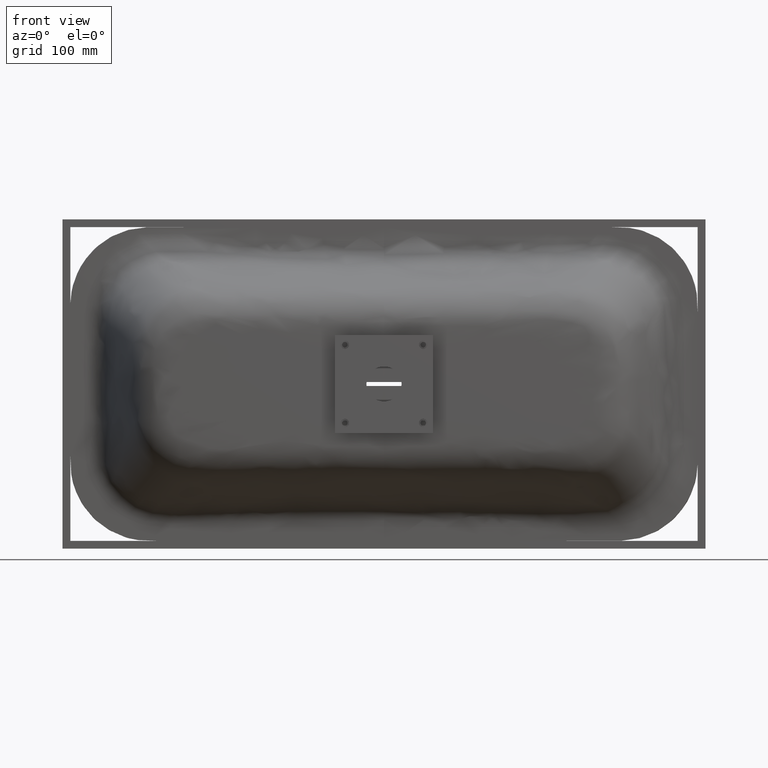
[diagram: clean part render]
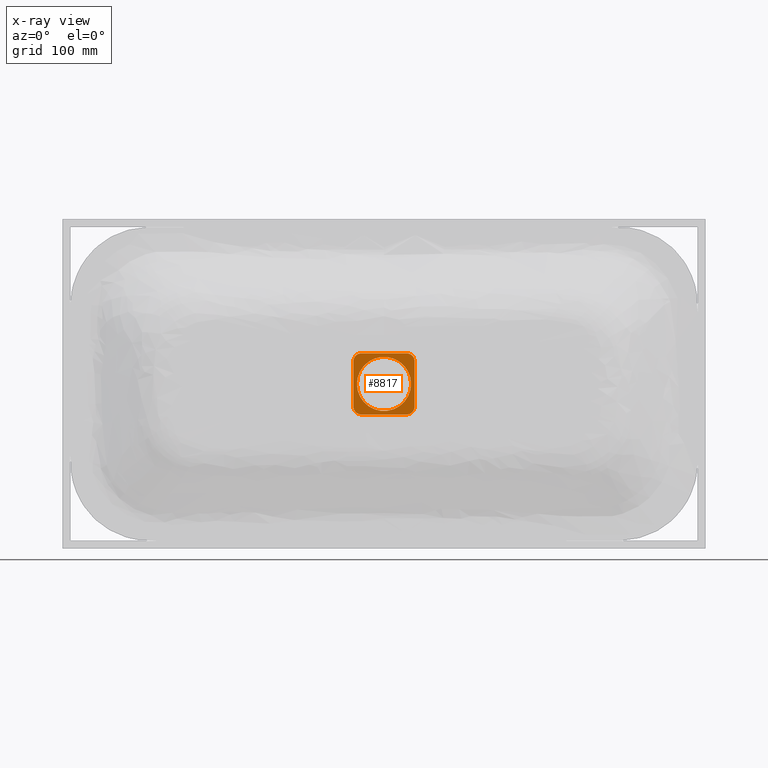
[diagram: x-ray — body ghosted, one internal face saturated and labeled with its STEP entity id]
A machine part, front view, then the same camera in x-ray: the body is ghosted and one INTERNAL B-rep face — a face not visible from any outside direction — is saturated and labeled: STEP entity #8817.
In plain terms, the highlighted planar face has unit normal (0, 1, 0).
Its self-contained STEP definition (entity closure, byte-faithful):
#172 = VERTEX_POINT ( 'NONE', #371 ) ;
#273 = EDGE_LOOP ( 'NONE', ( #3180, #1558, #1637, #3126, #3613, #4059, #3337, #4760 ) ) ;
#362 = CARTESIAN_POINT ( 'NONE',  ( 39.00000000000010700, -4.999999999999997300, 28.99999999999989300 ) ) ;
#371 = CARTESIAN_POINT ( 'NONE',  ( 34.49999999999999300, -4.999999999999999100, -1.135557536678629300E-013 ) ) ;
#507 = EDGE_LOOP ( 'NONE', ( #9098, #836 ) ) ;
#711 = CIRCLE ( 'NONE', #3258, 9.999999999999998200 ) ;
#836 = ORIENTED_EDGE ( 'NONE', *, *, #8757, .T. ) ;
#873 = VECTOR ( 'NONE', #8329, 1000.000000000000000 ) ;
#1093 = VERTEX_POINT ( 'NONE', #7309 ) ;
#1238 = DIRECTION ( 'NONE',  ( -1.000000000000000000, 0.0000000000000000000, 3.413935800722356400E-015 ) ) ;
#1401 = FACE_BOUND ( 'NONE', #507, .T. ) ;
#1558 = ORIENTED_EDGE ( 'NONE', *, *, #4529, .T. ) ;
#1637 = ORIENTED_EDGE ( 'NONE', *, *, #4558, .T. ) ;
#1737 = AXIS2_PLACEMENT_3D ( 'NONE', #6069, #5672, #5375 ) ;
#1901 = DIRECTION ( 'NONE',  ( -0.0000000000000000000, -1.000000000000000000, -0.0000000000000000000 ) ) ;
#1930 = CARTESIAN_POINT ( 'NONE',  ( 0.0000000000000000000, -4.999999999999997300, -0.0000000000000000000 ) ) ;
#1977 = LINE ( 'NONE', #9398, #4228 ) ;
#2020 = VERTEX_POINT ( 'NONE', #7620 ) ;
#2105 = VERTEX_POINT ( 'NONE', #362 ) ;
#2274 = DIRECTION ( 'NONE',  ( -1.000000000000000000, 0.0000000000000000000, 3.469446951953615000E-015 ) ) ;
#2302 = DIRECTION ( 'NONE',  ( 0.0000000000000000000, 1.000000000000000000, 0.0000000000000000000 ) ) ;
#2318 = CARTESIAN_POINT ( 'NONE',  ( 29.00000000000010700, -4.999999999999997300, 28.99999999999992500 ) ) ;
#2399 = VERTEX_POINT ( 'NONE', #3646 ) ;
#2475 = VERTEX_POINT ( 'NONE', #7629 ) ;
#2775 = EDGE_CURVE ( 'NONE', #3252, #1093, #7387, .T. ) ;
#3036 = DIRECTION ( 'NONE',  ( -1.000000000000000000, 0.0000000000000000000, 3.502895978977577200E-015 ) ) ;
#3057 = CARTESIAN_POINT ( 'NONE',  ( 38.99999999999987200, -4.999999999999997300, -39.00000000000016300 ) ) ;
#3126 = ORIENTED_EDGE ( 'NONE', *, *, #4548, .T. ) ;
#3159 = AXIS2_PLACEMENT_3D ( 'NONE', #2318, #2302, #2274 ) ;
#3180 = ORIENTED_EDGE ( 'NONE', *, *, #7411, .T. ) ;
#3213 = VERTEX_POINT ( 'NONE', #8121 ) ;
#3252 = VERTEX_POINT ( 'NONE', #8053 ) ;
#3258 = AXIS2_PLACEMENT_3D ( 'NONE', #9782, #9144, #9112 ) ;
#3337 = ORIENTED_EDGE ( 'NONE', *, *, #8374, .T. ) ;
#3517 = LINE ( 'NONE', #3057, #5643 ) ;
#3613 = ORIENTED_EDGE ( 'NONE', *, *, #9808, .T. ) ;
#3646 = CARTESIAN_POINT ( 'NONE',  ( -28.99999999999986500, -4.999999999999997300, 39.00000000000010700 ) ) ;
#4032 = VECTOR ( 'NONE', #8311, 1000.000000000000000 ) ;
#4059 = ORIENTED_EDGE ( 'NONE', *, *, #8208, .T. ) ;
#4166 = LINE ( 'NONE', #8285, #4032 ) ;
#4228 = VECTOR ( 'NONE', #9364, 1000.000000000000000 ) ;
#4403 = CIRCLE ( 'NONE', #9314, 34.50000000000000000 ) ;
#4529 = EDGE_CURVE ( 'NONE', #2020, #6277, #711, .T. ) ;
#4548 = EDGE_CURVE ( 'NONE', #2475, #2399, #6474, .T. ) ;
#4558 = EDGE_CURVE ( 'NONE', #6277, #2475, #1977, .T. ) ;
#4736 = VERTEX_POINT ( 'NONE', #9779 ) ;
#4760 = ORIENTED_EDGE ( 'NONE', *, *, #2775, .T. ) ;
#4993 = FACE_OUTER_BOUND ( 'NONE', #273, .T. ) ;
#5116 = CIRCLE ( 'NONE', #9489, 34.50000000000000000 ) ;
#5241 = CIRCLE ( 'NONE', #3159, 9.999999999999998200 ) ;
#5375 = DIRECTION ( 'NONE',  ( -1.000000000000000000, 0.0000000000000000000, 3.469446951953615000E-015 ) ) ;
#5643 = VECTOR ( 'NONE', #3036, 1000.000000000000000 ) ;
#5672 = DIRECTION ( 'NONE',  ( 0.0000000000000000000, 1.000000000000000000, 0.0000000000000000000 ) ) ;
#6069 = CARTESIAN_POINT ( 'NONE',  ( 28.99999999999990400, -4.999999999999997300, -29.00000000000012800 ) ) ;
#6277 = VERTEX_POINT ( 'NONE', #10127 ) ;
#6474 = CIRCLE ( 'NONE', #6532, 9.999999999999998200 ) ;
#6532 = AXIS2_PLACEMENT_3D ( 'NONE', #9384, #9376, #9757 ) ;
#6940 = LINE ( 'NONE', #9160, #873 ) ;
#7309 = CARTESIAN_POINT ( 'NONE',  ( 28.99999999999987200, -4.999999999999997300, -39.00000000000013500 ) ) ;
#7387 = CIRCLE ( 'NONE', #1737, 9.999999999999998200 ) ;
#7411 = EDGE_CURVE ( 'NONE', #1093, #2020, #3517, .T. ) ;
#7620 = CARTESIAN_POINT ( 'NONE',  ( -29.00000000000013100, -4.999999999999997300, -38.99999999999987900 ) ) ;
#7629 = CARTESIAN_POINT ( 'NONE',  ( -38.99999999999989300, -4.999999999999997300, 29.00000000000015600 ) ) ;
#8053 = CARTESIAN_POINT ( 'NONE',  ( 38.99999999999990800, -4.999999999999997300, -29.00000000000015600 ) ) ;
#8121 = CARTESIAN_POINT ( 'NONE',  ( -34.49999999999999300, -4.999999999999999100, 1.177807851249212900E-013 ) ) ;
#8208 = EDGE_CURVE ( 'NONE', #4736, #2105, #5241, .T. ) ;
#8281 = DIRECTION ( 'NONE',  ( -1.000000000000000000, 0.0000000000000000000, 3.413935800722356400E-015 ) ) ;
#8285 = CARTESIAN_POINT ( 'NONE',  ( 39.00000000000014200, -4.999999999999997300, 38.99999999999985100 ) ) ;
#8311 = DIRECTION ( 'NONE',  ( 1.000000000000000000, 0.0000000000000000000, -3.502895978977577200E-015 ) ) ;
#8318 = DIRECTION ( 'NONE',  ( 0.0000000000000000000, 1.000000000000000000, 0.0000000000000000000 ) ) ;
#8329 = DIRECTION ( 'NONE',  ( -3.413935800722356400E-015, 0.0000000000000000000, -1.000000000000000000 ) ) ;
#8374 = EDGE_CURVE ( 'NONE', #2105, #3252, #6940, .T. ) ;
#8757 = EDGE_CURVE ( 'NONE', #172, #3213, #5116, .T. ) ;
#8817 = ADVANCED_FACE ( 'NONE', ( #1401, #4993 ), #9150, .T. ) ;
#9010 = DIRECTION ( 'NONE',  ( -1.000000000000000000, 0.0000000000000000000, 3.413935800722356400E-015 ) ) ;
#9035 = DIRECTION ( 'NONE',  ( -0.0000000000000000000, -1.000000000000000000, -0.0000000000000000000 ) ) ;
#9037 = CARTESIAN_POINT ( 'NONE',  ( 0.0000000000000000000, -4.999999999999997300, -0.0000000000000000000 ) ) ;
#9098 = ORIENTED_EDGE ( 'NONE', *, *, #9349, .T. ) ;
#9112 = DIRECTION ( 'NONE',  ( -1.000000000000000000, 0.0000000000000000000, 3.469446951953615000E-015 ) ) ;
#9114 = CARTESIAN_POINT ( 'NONE',  ( -38.99999999999985800, -4.999999999999997300, 39.00000000000014200 ) ) ;
#9144 = DIRECTION ( 'NONE',  ( 0.0000000000000000000, 1.000000000000000000, 0.0000000000000000000 ) ) ;
#9150 = PLANE ( 'NONE',  #9446 ) ;
#9160 = CARTESIAN_POINT ( 'NONE',  ( 38.99999999999987200, -4.999999999999997300, -39.00000000000016300 ) ) ;
#9314 = AXIS2_PLACEMENT_3D ( 'NONE', #9037, #9035, #9010 ) ;
#9349 = EDGE_CURVE ( 'NONE', #3213, #172, #4403, .T. ) ;
#9364 = DIRECTION ( 'NONE',  ( 3.413935800722356400E-015, 0.0000000000000000000, 1.000000000000000000 ) ) ;
#9376 = DIRECTION ( 'NONE',  ( 0.0000000000000000000, 1.000000000000000000, 0.0000000000000000000 ) ) ;
#9384 = CARTESIAN_POINT ( 'NONE',  ( -28.99999999999989700, -4.999999999999997300, 29.00000000000012800 ) ) ;
#9398 = CARTESIAN_POINT ( 'NONE',  ( -39.00000000000012800, -4.999999999999997300, -38.99999999999985100 ) ) ;
#9446 = AXIS2_PLACEMENT_3D ( 'NONE', #9114, #8318, #8281 ) ;
#9489 = AXIS2_PLACEMENT_3D ( 'NONE', #1930, #1901, #1238 ) ;
#9757 = DIRECTION ( 'NONE',  ( -1.000000000000000000, 0.0000000000000000000, 3.469446951953615000E-015 ) ) ;
#9779 = CARTESIAN_POINT ( 'NONE',  ( 29.00000000000013500, -4.999999999999997300, 38.99999999999987900 ) ) ;
#9782 = CARTESIAN_POINT ( 'NONE',  ( -29.00000000000009200, -4.999999999999997300, -28.99999999999992500 ) ) ;
#9808 = EDGE_CURVE ( 'NONE', #2399, #4736, #4166, .T. ) ;
#10127 = CARTESIAN_POINT ( 'NONE',  ( -39.00000000000009200, -4.999999999999997300, -28.99999999999989300 ) ) ;